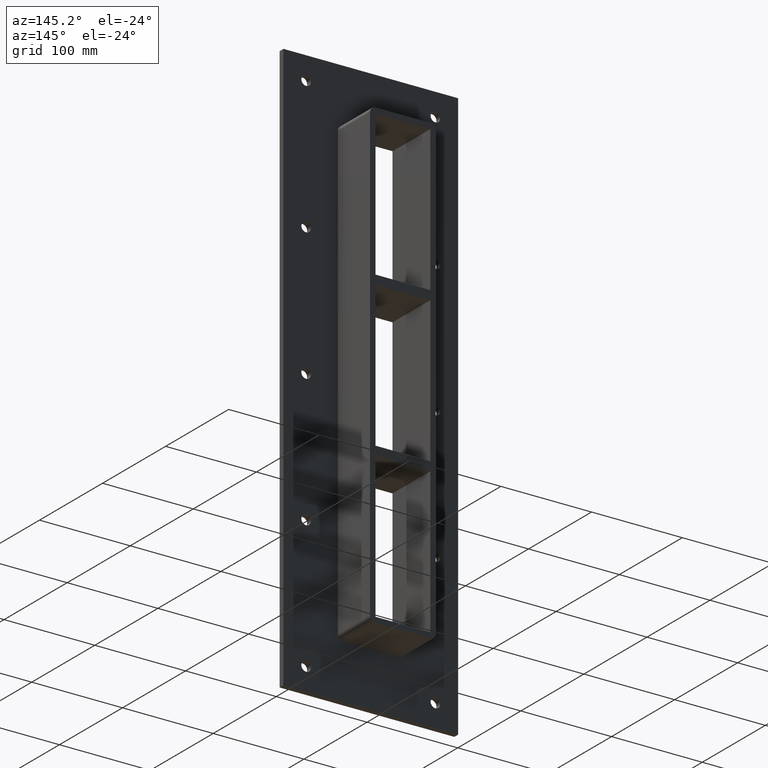
[diagram: clean part render]
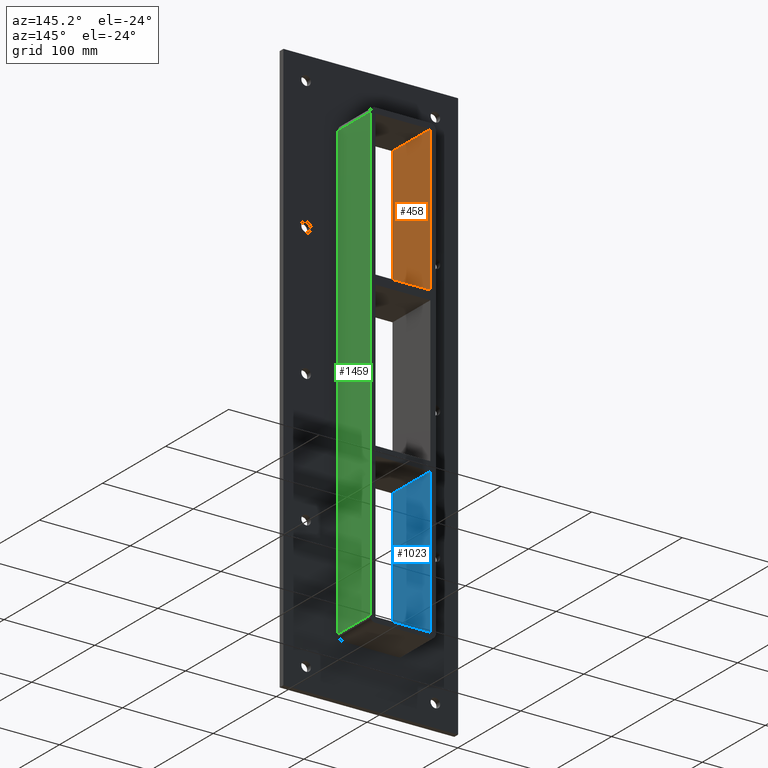
[diagram: same view with three faces highlighted in distinct colors, each labeled with its STEP entity id]
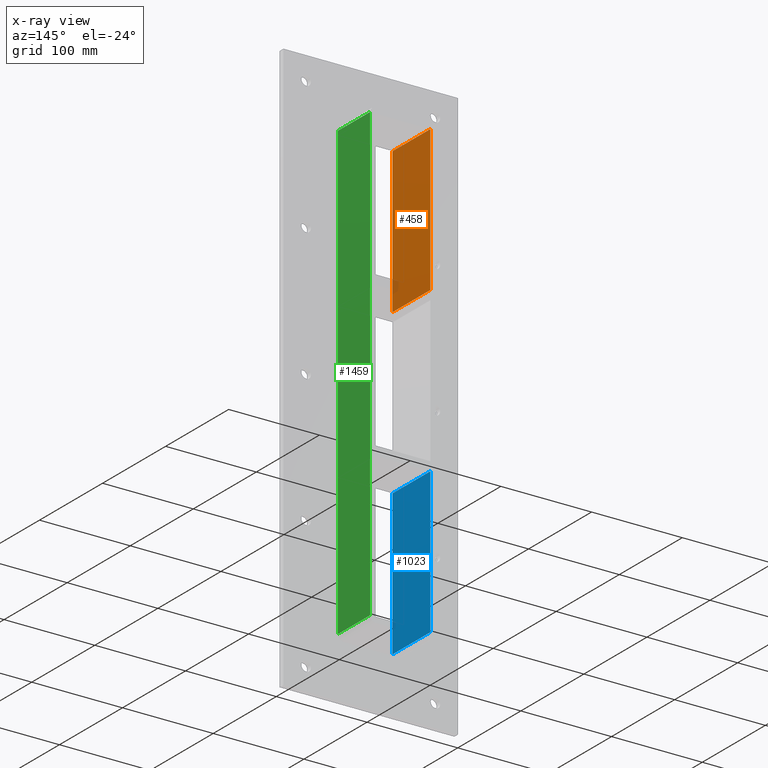
[diagram: x-ray of the same camera — body ghosted, the three highlighted faces saturated]
A machine part, auxiliary view with three faces highlighted in distinct colors.
The next image is the same camera in x-ray (body ghosted, the three faces saturated) — at least one of them is partly hidden behind the body in this view.
Their STEP definitions:

[orange] entity #458 — the highlighted planar face has unit normal (-1, 0, 0).
#393=CARTESIAN_POINT('',(-30.249999999997069,-3.0,89.750000000000938));
#394=VERTEX_POINT('',#393);
#411=CARTESIAN_POINT('',(-30.249999999997069,57.0,89.750000000000938));
#412=VERTEX_POINT('',#411);
#419=CARTESIAN_POINT('',(-30.249999999999986,-3.0,89.750000000000924));
#420=DIRECTION('',(0.0,1.0,0.0));
#421=VECTOR('',#420,60.000000000000007);
#422=LINE('',#419,#421);
#423=EDGE_CURVE('',#394,#412,#422,.T.);
#428=CARTESIAN_POINT('',(-30.249999999999986,0.0,-249.25));
#429=DIRECTION('',(-1.0,0.0,0.0));
#430=DIRECTION('',(0.0,0.0,1.0));
#431=AXIS2_PLACEMENT_3D('',#428,#429,#430);
#432=PLANE('',#431);
#433=ORIENTED_EDGE('',*,*,#423,.T.);
#434=CARTESIAN_POINT('',(-30.249999999999986,57.0,249.25));
#435=VERTEX_POINT('',#434);
#436=CARTESIAN_POINT('',(-30.249999999999986,57.0,249.25));
#437=DIRECTION('',(0.0,0.0,-1.0));
#438=VECTOR('',#437,159.49999999999909);
#439=LINE('',#436,#438);
#440=EDGE_CURVE('',#435,#412,#439,.T.);
#441=ORIENTED_EDGE('',*,*,#440,.F.);
#442=CARTESIAN_POINT('',(-30.249999999999986,-3.0,249.25));
#443=VERTEX_POINT('',#442);
#444=CARTESIAN_POINT('',(-30.249999999999986,-3.0,249.25));
#445=DIRECTION('',(0.0,1.0,0.0));
#446=VECTOR('',#445,60.0);
#447=LINE('',#444,#446);
#448=EDGE_CURVE('',#443,#435,#447,.T.);
#449=ORIENTED_EDGE('',*,*,#448,.F.);
#450=CARTESIAN_POINT('',(-30.249999999999986,-3.0,89.750000000000909));
#451=DIRECTION('',(0.0,0.0,1.0));
#452=VECTOR('',#451,159.49999999999909);
#453=LINE('',#450,#452);
#454=EDGE_CURVE('',#394,#443,#453,.T.);
#455=ORIENTED_EDGE('',*,*,#454,.F.);
#456=EDGE_LOOP('',(#433,#441,#449,#455));
#457=FACE_OUTER_BOUND('',#456,.T.);
#458=ADVANCED_FACE('',(#457),#432,.F.);

[blue] entity #1023 — the highlighted planar face has unit normal (-1, 0, 0).
#528=CARTESIAN_POINT('',(-30.249999999997065,-3.0,-89.750000000010459));
#529=VERTEX_POINT('',#528);
#536=CARTESIAN_POINT('',(-30.249999999997065,57.0,-89.750000000010459));
#537=VERTEX_POINT('',#536);
#538=CARTESIAN_POINT('',(-30.249999999999986,57.000000000000007,-89.750000000010473));
#539=DIRECTION('',(0.0,-1.0,0.0));
#540=VECTOR('',#539,60.000000000000007);
#541=LINE('',#538,#540);
#542=EDGE_CURVE('',#537,#529,#541,.T.);
#993=CARTESIAN_POINT('',(-30.249999999999986,0.0,-249.25));
#994=DIRECTION('',(-1.0,0.0,0.0));
#995=DIRECTION('',(0.0,0.0,1.0));
#996=AXIS2_PLACEMENT_3D('',#993,#994,#995);
#997=PLANE('',#996);
#998=ORIENTED_EDGE('',*,*,#542,.T.);
#999=CARTESIAN_POINT('',(-30.249999999999986,-3.0,-249.25));
#1000=VERTEX_POINT('',#999);
#1001=CARTESIAN_POINT('',(-30.249999999999986,-3.0,-249.25));
#1002=DIRECTION('',(0.0,0.0,1.0));
#1003=VECTOR('',#1002,159.49999999998954);
#1004=LINE('',#1001,#1003);
#1005=EDGE_CURVE('',#1000,#529,#1004,.T.);
#1006=ORIENTED_EDGE('',*,*,#1005,.F.);
#1007=CARTESIAN_POINT('',(-30.249999999999986,57.0,-249.25));
#1008=VERTEX_POINT('',#1007);
#1009=CARTESIAN_POINT('',(-30.249999999999986,-3.0,-249.25));
#1010=DIRECTION('',(0.0,1.0,0.0));
#1011=VECTOR('',#1010,60.0);
#1012=LINE('',#1009,#1011);
#1013=EDGE_CURVE('',#1000,#1008,#1012,.T.);
#1014=ORIENTED_EDGE('',*,*,#1013,.T.);
#1015=CARTESIAN_POINT('',(-30.249999999999986,57.0,-89.750000000010459));
#1016=DIRECTION('',(0.0,0.0,-1.0));
#1017=VECTOR('',#1016,159.49999999998954);
#1018=LINE('',#1015,#1017);
#1019=EDGE_CURVE('',#537,#1008,#1018,.T.);
#1020=ORIENTED_EDGE('',*,*,#1019,.F.);
#1021=EDGE_LOOP('',(#998,#1006,#1014,#1020));
#1022=FACE_OUTER_BOUND('',#1021,.T.);
#1023=ADVANCED_FACE('',(#1022),#997,.F.);

[green] entity #1459 — the highlighted planar face has unit normal (1, 0, 0).
#750=CARTESIAN_POINT('',(36.25,6.000000000000001,-249.25));
#751=VERTEX_POINT('',#750);
#759=CARTESIAN_POINT('',(36.25,6.000000000000001,249.25));
#760=VERTEX_POINT('',#759);
#761=CARTESIAN_POINT('',(36.25,6.000000000000001,249.25));
#762=DIRECTION('',(0.0,0.0,-1.0));
#763=VECTOR('',#762,498.5);
#764=LINE('',#761,#763);
#765=EDGE_CURVE('',#760,#751,#764,.T.);
#1070=CARTESIAN_POINT('',(36.25,57.0,-249.25));
#1071=VERTEX_POINT('',#1070);
#1079=CARTESIAN_POINT('',(36.25,57.0,-249.25));
#1080=DIRECTION('',(0.0,-1.0,0.0));
#1081=VECTOR('',#1080,51.0);
#1082=LINE('',#1079,#1081);
#1083=EDGE_CURVE('',#1071,#751,#1082,.T.);
#1424=CARTESIAN_POINT('',(36.25,57.0,249.25));
#1425=VERTEX_POINT('',#1424);
#1426=CARTESIAN_POINT('',(36.25,6.000000000000001,249.25));
#1427=DIRECTION('',(0.0,1.0,0.0));
#1428=VECTOR('',#1427,51.0);
#1429=LINE('',#1426,#1428);
#1430=EDGE_CURVE('',#760,#1425,#1429,.T.);
#1443=CARTESIAN_POINT('',(36.25,0.0,255.25000000000003));
#1444=DIRECTION('',(1.0,0.0,0.0));
#1445=DIRECTION('',(0.0,0.0,-1.0));
#1446=AXIS2_PLACEMENT_3D('',#1443,#1444,#1445);
#1447=PLANE('',#1446);
#1448=ORIENTED_EDGE('',*,*,#765,.T.);
#1449=ORIENTED_EDGE('',*,*,#1083,.F.);
#1450=CARTESIAN_POINT('',(36.25,57.0,249.25));
#1451=DIRECTION('',(0.0,0.0,-1.0));
#1452=VECTOR('',#1451,498.5);
#1453=LINE('',#1450,#1452);
#1454=EDGE_CURVE('',#1425,#1071,#1453,.T.);
#1455=ORIENTED_EDGE('',*,*,#1454,.F.);
#1456=ORIENTED_EDGE('',*,*,#1430,.F.);
#1457=EDGE_LOOP('',(#1448,#1449,#1455,#1456));
#1458=FACE_OUTER_BOUND('',#1457,.T.);
#1459=ADVANCED_FACE('',(#1458),#1447,.T.);